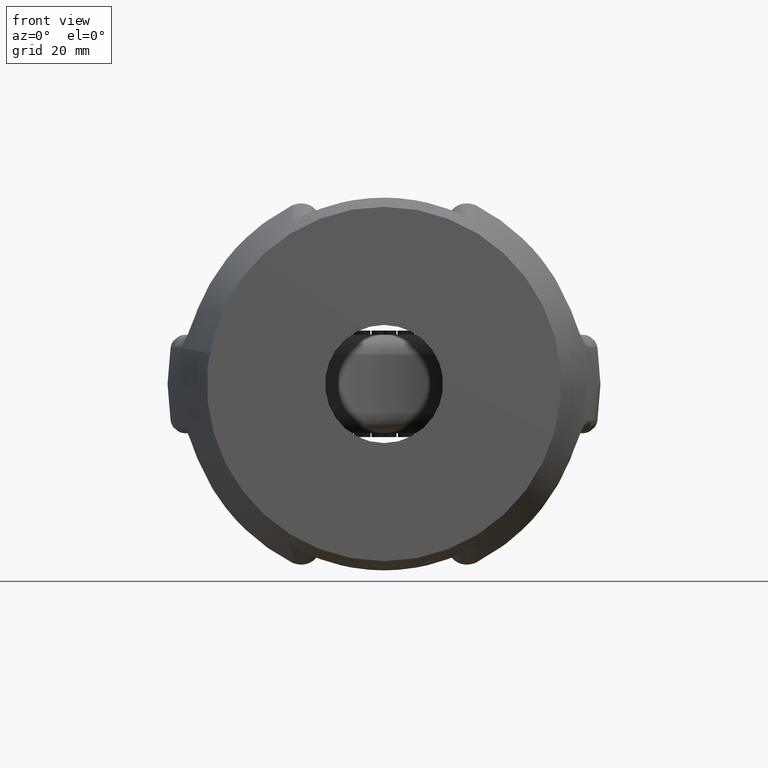
[diagram: clean part render]
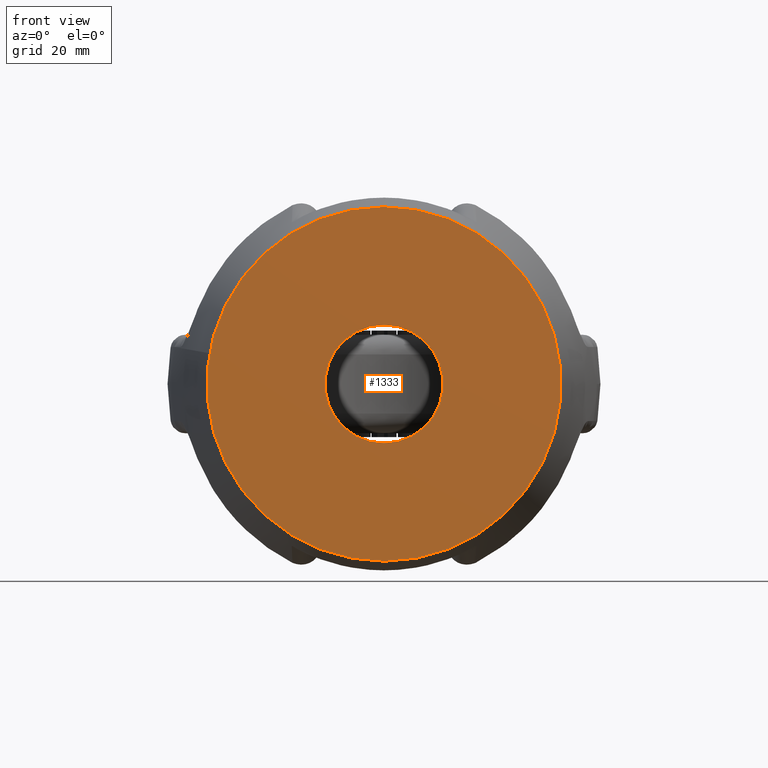
[diagram: same view with one face highlighted and labeled with its STEP entity id]
A machine part, front view. The second image highlights one B-rep face of the part: STEP entity #1333.
In plain terms, the highlighted planar face has unit normal (0, 1, 0).
Its self-contained STEP definition (entity closure, byte-faithful):
#1333=ADVANCED_FACE('',(#1783,#1784),#1570,.F.);
#1570=PLANE('',#5140);
#1699=CIRCLE('',#5138,15.);
#1700=CIRCLE('',#5139,45.0000000000001);
#1783=FACE_BOUND('',#1848,.T.);
#1784=FACE_BOUND('',#1849,.T.);
#1848=EDGE_LOOP('',(#2837));
#1849=EDGE_LOOP('',(#2838));
#2837=ORIENTED_EDGE('',*,*,#4387,.T.);
#2838=ORIENTED_EDGE('',*,*,#4388,.F.);
#3997=VERTEX_POINT('',#6842);
#3998=VERTEX_POINT('',#6844);
#4387=EDGE_CURVE('',#3997,#3997,#1699,.T.);
#4388=EDGE_CURVE('',#3998,#3998,#1700,.T.);
#5138=AXIS2_PLACEMENT_3D('',#6841,#5514,#5515);
#5139=AXIS2_PLACEMENT_3D('',#6843,#5516,#5517);
#5140=AXIS2_PLACEMENT_3D('',#6845,#5518,#5519);
#5514=DIRECTION('',(0.,1.,0.));
#5515=DIRECTION('',(0.,0.,1.));
#5516=DIRECTION('',(0.,1.,0.));
#5517=DIRECTION('',(0.,0.,1.));
#5518=DIRECTION('',(0.,1.,0.));
#5519=DIRECTION('',(0.,0.,1.));
#6841=CARTESIAN_POINT('',(0.,0.,0.));
#6842=CARTESIAN_POINT('',(0.,0.,15.));
#6843=CARTESIAN_POINT('',(-1.27403500852703E-13,0.,1.26481222922364E-14));
#6844=CARTESIAN_POINT('',(-1.27403500852703E-13,0.,45.0000000000002));
#6845=CARTESIAN_POINT('',(0.,0.,0.));